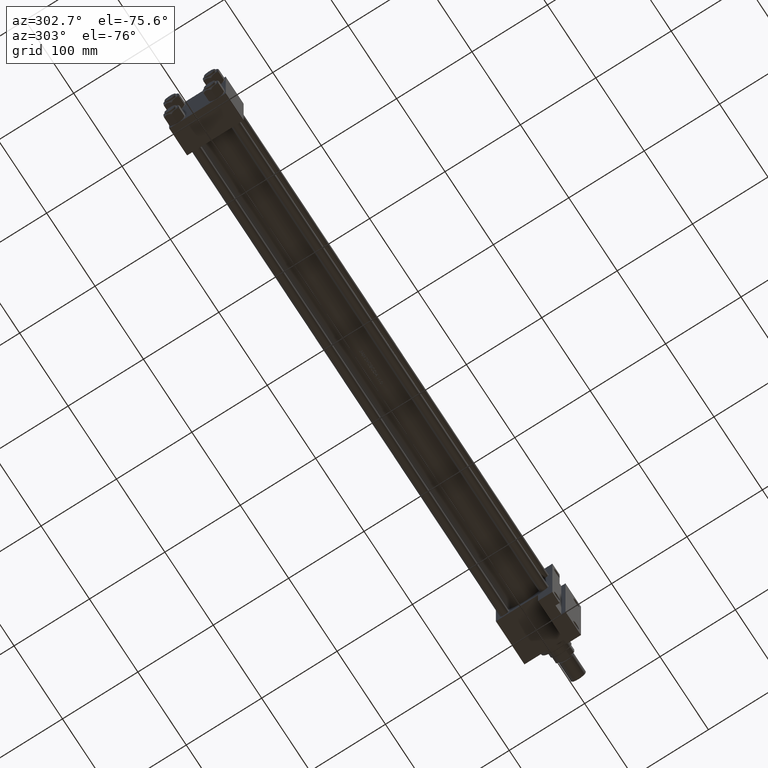
[diagram: clean part render]
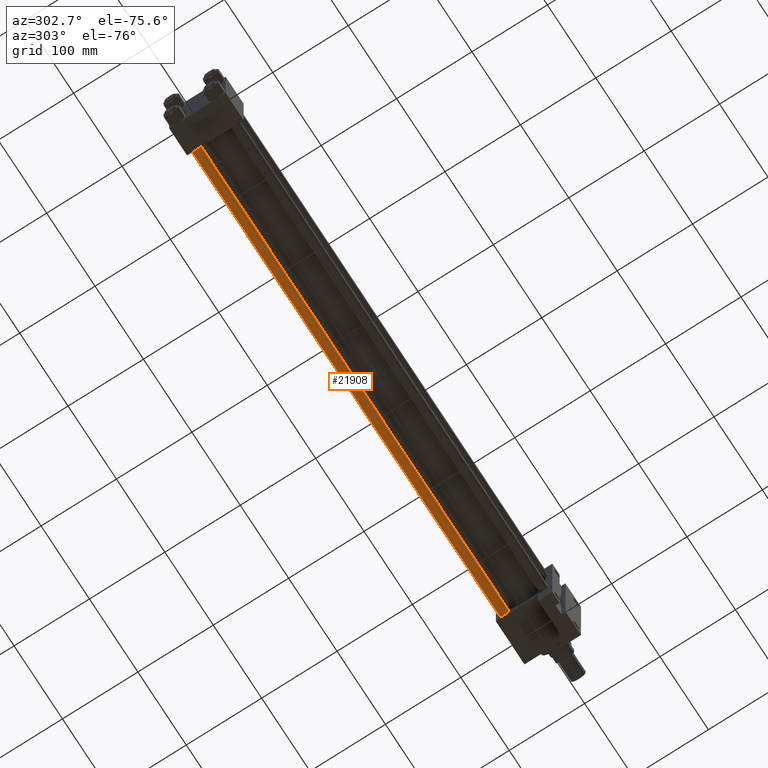
[diagram: same view with one face highlighted and labeled with its STEP entity id]
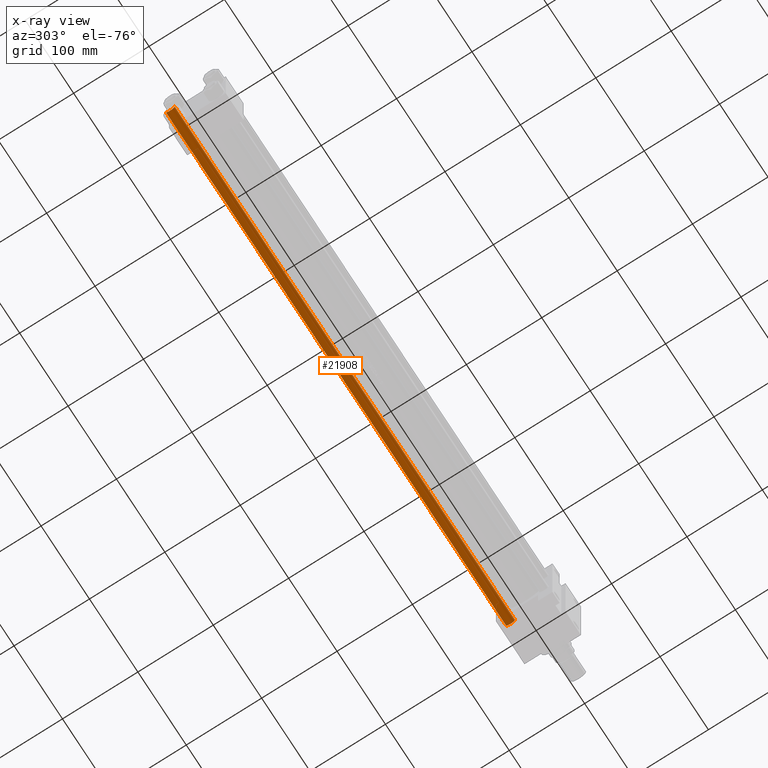
[diagram: x-ray of the same camera — body ghosted, the highlighted face saturated]
A machine part, auxiliary view. The second image highlights one B-rep face of the part: STEP entity #21908.
The next image is the same camera in x-ray: the body ghosted, the highlighted face saturated — about 0% of this face is hidden behind the body in this view.
In plain terms, the highlighted cylindrical surface (edge-blend (fillet) strip) has radius 6 mm, axis along (-1, -0, 0).
Its self-contained STEP definition (entity closure, byte-faithful):
#1859 = EDGE_LOOP ( 'NONE', ( #18583, #38253, #21425, #23804 ) ) ;
#2698 = EDGE_CURVE ( 'NONE', #10291, #5736, #38318, .T. ) ;
#3633 = VECTOR ( 'NONE', #28556, 1000.000000000000000 ) ;
#3667 = VERTEX_POINT ( 'NONE', #45545 ) ;
#3872 = CARTESIAN_POINT ( 'NONE',  ( 6.000000000000000888, 7.347880794884120722E-16, 703.5000000000000000 ) ) ;
#4553 = CARTESIAN_POINT ( 'NONE',  ( -6.000000000000000888, 0.000000000000000000, 0.4999999999998339106 ) ) ;
#5736 = VERTEX_POINT ( 'NONE', #35572 ) ;
#9750 = VERTEX_POINT ( 'NONE', #3872 ) ;
#9783 = CYLINDRICAL_SURFACE ( 'NONE', #47813, 6.000000000000000888 ) ;
#10291 = VERTEX_POINT ( 'NONE', #4553 ) ;
#13663 = DIRECTION ( 'NONE',  ( -0.000000000000000000, -0.000000000000000000, 1.000000000000000000 ) ) ;
#14188 = CIRCLE ( 'NONE', #27126, 6.000000000000000888 ) ;
#14892 = DIRECTION ( 'NONE',  ( 1.000000000000000000, 0.000000000000000000, 0.000000000000000000 ) ) ;
#17804 = DIRECTION ( 'NONE',  ( -0.000000000000000000, -0.000000000000000000, -1.000000000000000000 ) ) ;
#18583 = ORIENTED_EDGE ( 'NONE', *, *, #19707, .F. ) ;
#19707 = EDGE_CURVE ( 'NONE', #9750, #5736, #48220, .T. ) ;
#21425 = ORIENTED_EDGE ( 'NONE', *, *, #40837, .T. ) ;
#21908 = ADVANCED_FACE ( 'NONE', ( #44504 ), #9783, .T. ) ;
#23804 = ORIENTED_EDGE ( 'NONE', *, *, #2698, .T. ) ;
#25009 = CARTESIAN_POINT ( 'NONE',  ( -6.000000000000000888, 0.000000000000000000, 704.0000000000000000 ) ) ;
#25228 = CARTESIAN_POINT ( 'NONE',  ( 0.000000000000000000, 0.000000000000000000, 704.0000000000000000 ) ) ;
#25300 = DIRECTION ( 'NONE',  ( 1.000000000000000000, 0.000000000000000000, 0.000000000000000000 ) ) ;
#25634 = CARTESIAN_POINT ( 'NONE',  ( 6.000000000000000888, 7.347880794884120722E-16, 704.0000000000000000 ) ) ;
#27126 = AXIS2_PLACEMENT_3D ( 'NONE', #27290, #49873, #14892 ) ;
#27290 = CARTESIAN_POINT ( 'NONE',  ( 0.000000000000000000, 0.000000000000000000, 703.5000000000000000 ) ) ;
#28556 = DIRECTION ( 'NONE',  ( -0.000000000000000000, -0.000000000000000000, -1.000000000000000000 ) ) ;
#30249 = AXIS2_PLACEMENT_3D ( 'NONE', #48385, #13663, #25300 ) ;
#30256 = DIRECTION ( 'NONE',  ( -1.000000000000000000, 0.000000000000000000, 0.000000000000000000 ) ) ;
#35572 = CARTESIAN_POINT ( 'NONE',  ( 6.000000000000000888, 7.347880794884120722E-16, 0.4999999999998339106 ) ) ;
#38005 = EDGE_CURVE ( 'NONE', #9750, #3667, #14188, .T. ) ;
#38253 = ORIENTED_EDGE ( 'NONE', *, *, #38005, .T. ) ;
#38318 = CIRCLE ( 'NONE', #30249, 6.000000000000000888 ) ;
#38788 = VECTOR ( 'NONE', #17804, 1000.000000000000000 ) ;
#40837 = EDGE_CURVE ( 'NONE', #3667, #10291, #47329, .T. ) ;
#44504 = FACE_OUTER_BOUND ( 'NONE', #1859, .T. ) ;
#45545 = CARTESIAN_POINT ( 'NONE',  ( -6.000000000000000888, 0.000000000000000000, 703.5000000000000000 ) ) ;
#45995 = DIRECTION ( 'NONE',  ( -0.000000000000000000, -0.000000000000000000, -1.000000000000000000 ) ) ;
#47329 = LINE ( 'NONE', #25009, #3633 ) ;
#47813 = AXIS2_PLACEMENT_3D ( 'NONE', #25228, #45995, #30256 ) ;
#48220 = LINE ( 'NONE', #25634, #38788 ) ;
#48385 = CARTESIAN_POINT ( 'NONE',  ( 0.000000000000000000, 0.000000000000000000, 0.4999999999998339106 ) ) ;
#49873 = DIRECTION ( 'NONE',  ( 0.000000000000000000, 0.000000000000000000, -1.000000000000000000 ) ) ;